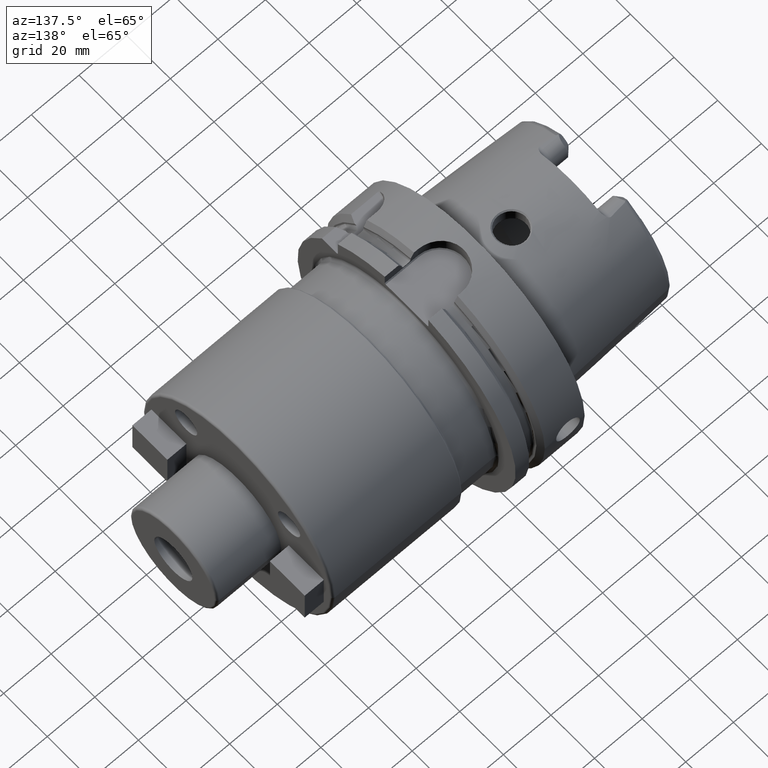
[diagram: clean part render]
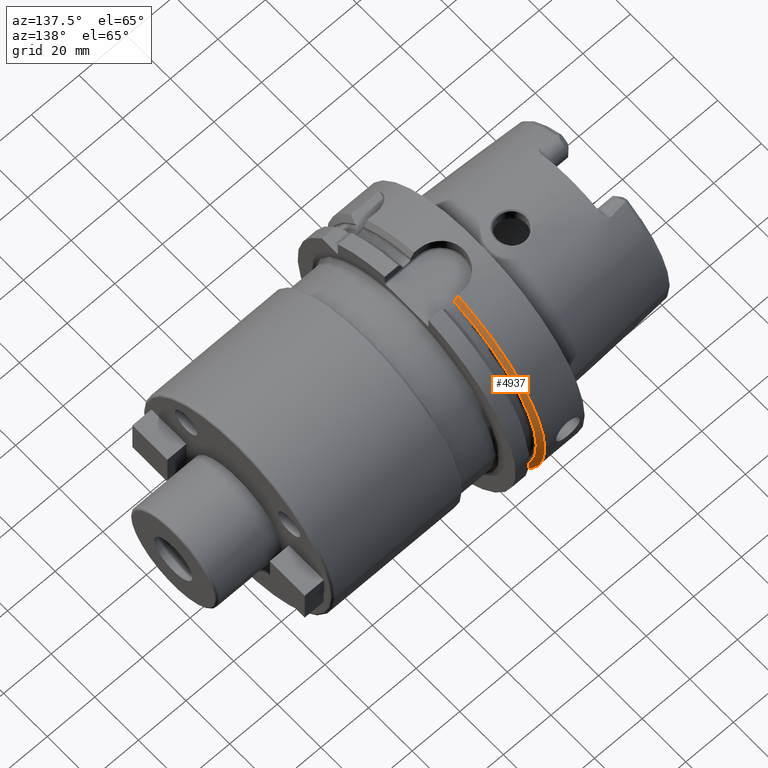
[diagram: same view with one face highlighted and labeled with its STEP entity id]
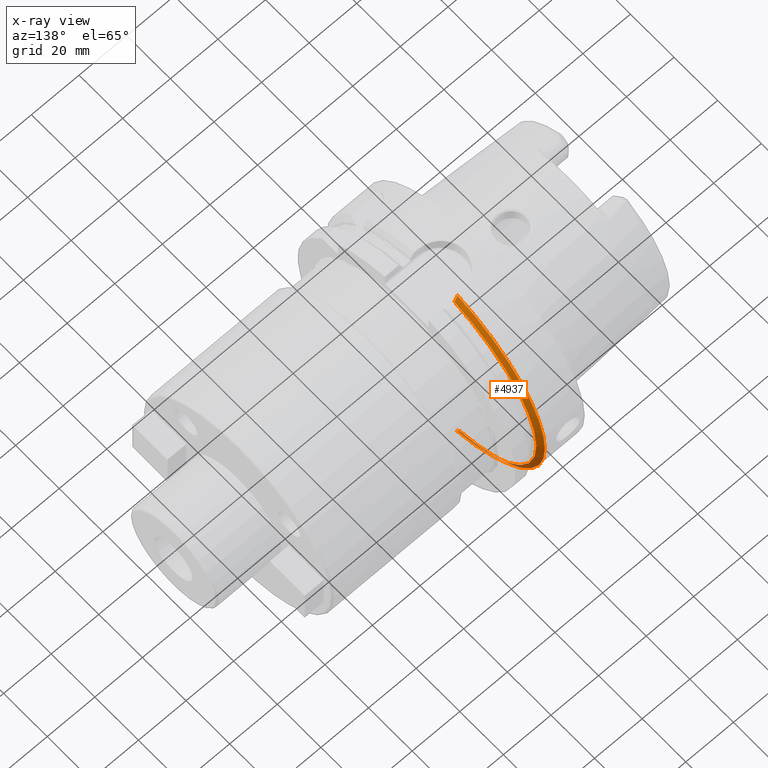
[diagram: x-ray of the same camera — body ghosted, the highlighted face saturated]
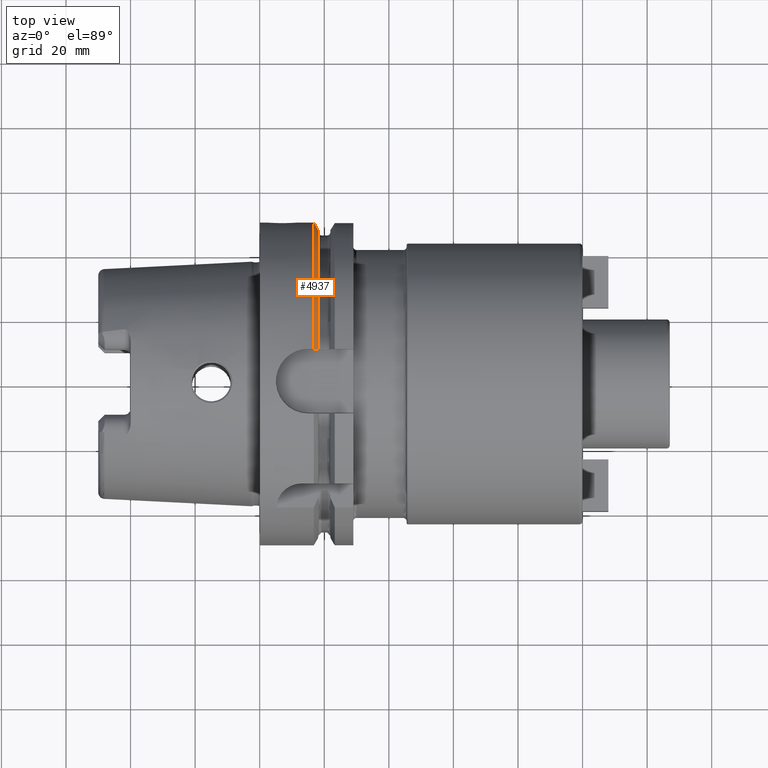
[diagram: same view with one face highlighted and labeled with its STEP entity id]
A machine part, auxiliary view. The second image highlights one B-rep face of the part: STEP entity #4937.
The next image is the same camera in x-ray: the body ghosted, the highlighted face saturated — about 7% of this face is hidden behind the body in this view.
A second angle (top view) of the same face is appended — the face is thin or edge-on in the first view.
In plain terms, the highlighted conical surface has half-angle 60 deg.
Its self-contained STEP definition (entity closure, byte-faithful):
#983=CARTESIAN_POINT('',(1.675240473581E1,0.E0,0.E0));
#984=DIRECTION('',(1.E0,0.E0,0.E0));
#985=DIRECTION('',(0.E0,1.E0,0.E0));
#986=AXIS2_PLACEMENT_3D('',#983,#984,#985);
#1153=CARTESIAN_POINT('',(1.675240473581E1,0.E0,0.E0));
#1154=DIRECTION('',(1.E0,0.E0,0.E0));
#1155=DIRECTION('',(0.E0,2.2E-1,-9.754998718606E-1));
#1156=AXIS2_PLACEMENT_3D('',#1153,#1154,#1155);
#1293=CARTESIAN_POINT('',(1.675240473581E1,1.1E1,-4.877499359303E1));
#1294=CARTESIAN_POINT('',(1.690924381756E1,1.1E1,-4.849651763825E1));
#1295=CARTESIAN_POINT('',(1.722003488111E1,1.1E1,-4.794446101512E1));
#1296=CARTESIAN_POINT('',(1.767748451792E1,1.1E1,-4.713119970766E1));
#1297=CARTESIAN_POINT('',(1.797678145324E1,1.1E1,-4.659863454325E1));
#1298=CARTESIAN_POINT('',(1.8125E1,1.1E1,-4.633477721644E1));
#1300=CARTESIAN_POINT('',(1.8125E1,0.E0,0.E0));
#1301=DIRECTION('',(1.E0,0.E0,0.E0));
#1302=DIRECTION('',(0.E0,2.309827916554E-1,-9.729578356533E-1));
#1303=AXIS2_PLACEMENT_3D('',#1300,#1301,#1302);
#1305=CARTESIAN_POINT('',(1.8125E1,1.E1,4.656083740331E1));
#1306=CARTESIAN_POINT('',(1.797658514585E1,1.E1,4.682376142925E1));
#1307=CARTESIAN_POINT('',(1.767702607707E1,1.E1,4.735424823675E1));
#1308=CARTESIAN_POINT('',(1.721956688963E1,1.E1,4.816377318979E1));
#1309=CARTESIAN_POINT('',(1.690904309270E1,1.E1,4.871289474479E1));
#1310=CARTESIAN_POINT('',(1.675240473581E1,1.E1,4.898979485566E1));
#3290=CARTESIAN_POINT('',(1.675240473581E1,5.E1,0.E0));
#3291=VERTEX_POINT('',#3290);
#3312=CARTESIAN_POINT('',(1.675240473581E1,1.E1,4.898979485566E1));
#3313=VERTEX_POINT('',#3312);
#3318=CARTESIAN_POINT('',(1.8125E1,1.E1,4.656083740331E1));
#3320=VERTEX_POINT('',#3318);
#3341=CARTESIAN_POINT('',(1.675240473581E1,1.1E1,-4.877499359303E1));
#3343=VERTEX_POINT('',#3341);
#3356=CARTESIAN_POINT('',(1.8125E1,1.1E1,-4.633477721644E1));
#3358=VERTEX_POINT('',#3356);
#4923=CARTESIAN_POINT('',(1.743870236790E1,0.E0,0.E0));
#4924=DIRECTION('',(-1.E0,0.E0,0.E0));
#4925=DIRECTION('',(0.E0,1.E0,0.E0));
#4926=AXIS2_PLACEMENT_3D('',#4923,#4924,#4925);
#4927=CONICAL_SURFACE('',#4926,4.881129763210E1,6.E1);
#4928=ORIENTED_EDGE('',*,*,#4820,.T.);
#4930=ORIENTED_EDGE('',*,*,#4929,.T.);
#4932=ORIENTED_EDGE('',*,*,#4931,.T.);
#4933=ORIENTED_EDGE('',*,*,#4599,.F.);
#4934=ORIENTED_EDGE('',*,*,#4780,.F.);
#4935=EDGE_LOOP('',(#4928,#4930,#4932,#4933,#4934));
#4936=FACE_OUTER_BOUND('',#4935,.F.);
#4937=ADVANCED_FACE('',(#4936),#4927,.T.);
#987=CIRCLE('',#986,5.E1);
#1157=CIRCLE('',#1156,5.E1);
#1299=B_SPLINE_CURVE_WITH_KNOTS('',3,(#1293,#1294,#1295,#1296,#1297,#1298),
.UNSPECIFIED.,.F.,.F.,(4,1,1,4),(0.E0,3.333333333333E-1,6.666666666667E-1,1.E0),
.UNSPECIFIED.);
#1304=CIRCLE('',#1303,4.762259526419E1);
#1311=B_SPLINE_CURVE_WITH_KNOTS('',3,(#1305,#1306,#1307,#1308,#1309,#1310),
.UNSPECIFIED.,.F.,.F.,(4,1,1,4),(0.E0,3.333333333333E-1,6.666666666667E-1,1.E0),
.UNSPECIFIED.);
#4599=EDGE_CURVE('',#3291,#3313,#987,.T.);
#4780=EDGE_CURVE('',#3343,#3291,#1157,.T.);
#4820=EDGE_CURVE('',#3343,#3358,#1299,.T.);
#4929=EDGE_CURVE('',#3358,#3320,#1304,.T.);
#4931=EDGE_CURVE('',#3320,#3313,#1311,.T.);